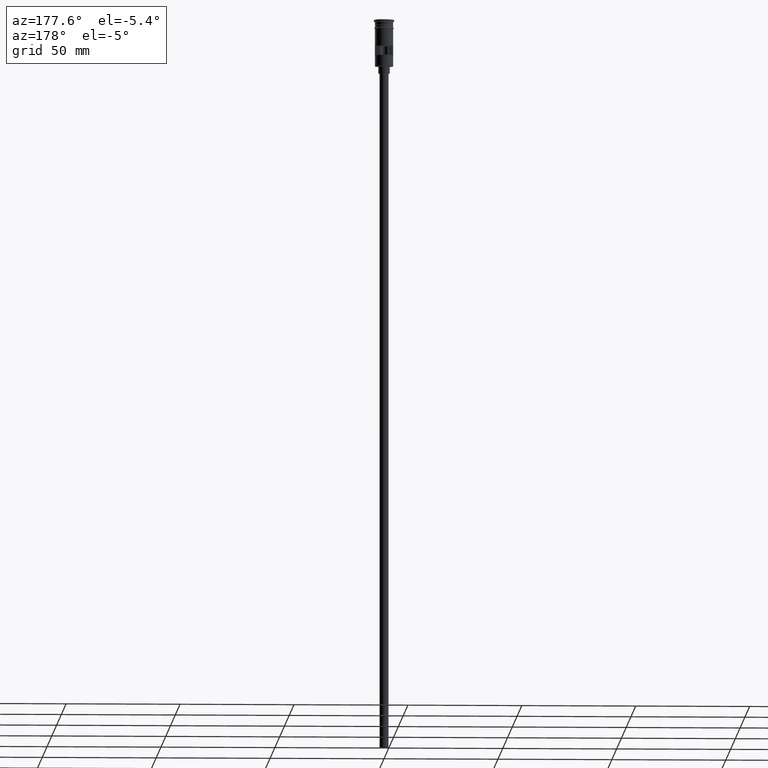
[diagram: clean part render]
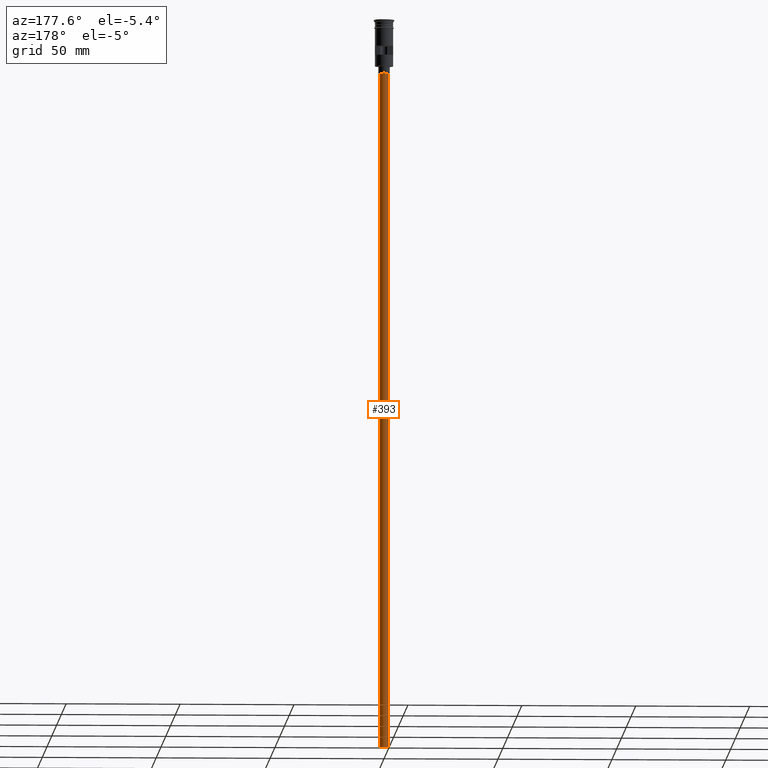
[diagram: same view with one face highlighted and labeled with its STEP entity id]
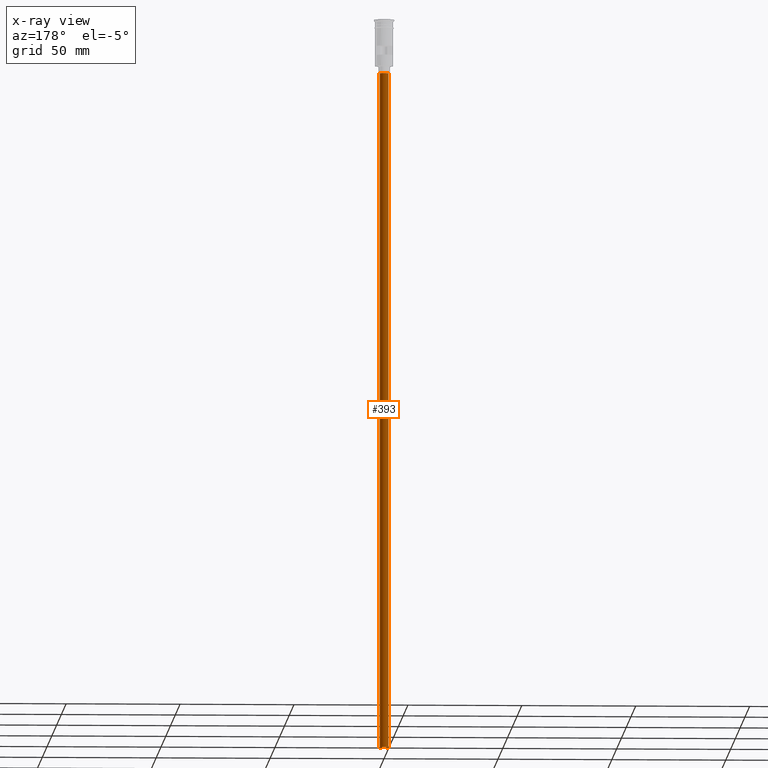
[diagram: x-ray of the same camera — body ghosted, the highlighted face saturated]
A machine part, auxiliary view. The second image highlights one B-rep face of the part: STEP entity #393.
The next image is the same camera in x-ray: the body ghosted, the highlighted face saturated — about 0% of this face is hidden behind the body in this view.
In plain terms, the highlighted cylindrical surface (edge-blend (fillet) strip) has radius 2 mm, axis along (-0, -0, 1).
Its self-contained STEP definition (entity closure, byte-faithful):
#22 = CARTESIAN_POINT ( 'NONE',  ( 0.000000000000000000, 0.000000000000000000, -320.5000000000000000 ) ) ;
#75 = LINE ( 'NONE', #433, #792 ) ;
#110 = CARTESIAN_POINT ( 'NONE',  ( 2.000000000000000000, 0.000000000000000000, -23.49999999999999645 ) ) ;
#118 = CIRCLE ( 'NONE', #729, 2.000000000000000000 ) ;
#145 = CYLINDRICAL_SURFACE ( 'NONE', #1175, 2.000000000000000000 ) ;
#276 = DIRECTION ( 'NONE',  ( -0.000000000000000000, -0.000000000000000000, 1.000000000000000000 ) ) ;
#333 = EDGE_CURVE ( 'NONE', #1108, #1413, #75, .T. ) ;
#374 = DIRECTION ( 'NONE',  ( 0.000000000000000000, 0.000000000000000000, -1.000000000000000000 ) ) ;
#379 = CARTESIAN_POINT ( 'NONE',  ( 0.000000000000000000, 0.000000000000000000, -23.49999999999999645 ) ) ;
#393 = ADVANCED_FACE ( 'NONE', ( #1373 ), #145, .T. ) ;
#424 = CIRCLE ( 'NONE', #751, 2.000000000000000000 ) ;
#433 = CARTESIAN_POINT ( 'NONE',  ( -2.000000000000000000, 2.449293598294706414E-16, -320.5000000000000000 ) ) ;
#542 = DIRECTION ( 'NONE',  ( -0.000000000000000000, -0.000000000000000000, 1.000000000000000000 ) ) ;
#558 = VERTEX_POINT ( 'NONE', #110 ) ;
#729 = AXIS2_PLACEMENT_3D ( 'NONE', #379, #374, #761 ) ;
#751 = AXIS2_PLACEMENT_3D ( 'NONE', #1515, #1265, #1526 ) ;
#761 = DIRECTION ( 'NONE',  ( -1.000000000000000000, 0.000000000000000000, 0.000000000000000000 ) ) ;
#792 = VECTOR ( 'NONE', #542, 1000.000000000000000 ) ;
#830 = EDGE_CURVE ( 'NONE', #1108, #1267, #424, .T. ) ;
#949 = ORIENTED_EDGE ( 'NONE', *, *, #830, .F. ) ;
#1027 = CARTESIAN_POINT ( 'NONE',  ( 2.000000000000000000, 0.000000000000000000, -320.5000000000000000 ) ) ;
#1106 = ORIENTED_EDGE ( 'NONE', *, *, #333, .T. ) ;
#1108 = VERTEX_POINT ( 'NONE', #1392 ) ;
#1111 = EDGE_CURVE ( 'NONE', #1413, #558, #118, .T. ) ;
#1142 = DIRECTION ( 'NONE',  ( 1.000000000000000000, 0.000000000000000000, 0.000000000000000000 ) ) ;
#1175 = AXIS2_PLACEMENT_3D ( 'NONE', #22, #276, #1142 ) ;
#1183 = DIRECTION ( 'NONE',  ( -0.000000000000000000, -0.000000000000000000, 1.000000000000000000 ) ) ;
#1193 = EDGE_LOOP ( 'NONE', ( #949, #1106, #1381, #1393 ) ) ;
#1217 = EDGE_CURVE ( 'NONE', #1267, #558, #1536, .T. ) ;
#1225 = VECTOR ( 'NONE', #1183, 1000.000000000000000 ) ;
#1265 = DIRECTION ( 'NONE',  ( 0.000000000000000000, 0.000000000000000000, -1.000000000000000000 ) ) ;
#1267 = VERTEX_POINT ( 'NONE', #1280 ) ;
#1280 = CARTESIAN_POINT ( 'NONE',  ( 2.000000000000000000, 0.000000000000000000, -320.5000000000000000 ) ) ;
#1335 = CARTESIAN_POINT ( 'NONE',  ( -2.000000000000000000, 2.449293598294706414E-16, -23.49999999999999645 ) ) ;
#1373 = FACE_OUTER_BOUND ( 'NONE', #1193, .T. ) ;
#1381 = ORIENTED_EDGE ( 'NONE', *, *, #1111, .T. ) ;
#1392 = CARTESIAN_POINT ( 'NONE',  ( -2.000000000000000000, 2.449293598294706414E-16, -320.5000000000000000 ) ) ;
#1393 = ORIENTED_EDGE ( 'NONE', *, *, #1217, .F. ) ;
#1413 = VERTEX_POINT ( 'NONE', #1335 ) ;
#1515 = CARTESIAN_POINT ( 'NONE',  ( 0.000000000000000000, 0.000000000000000000, -320.5000000000000000 ) ) ;
#1526 = DIRECTION ( 'NONE',  ( -1.000000000000000000, 0.000000000000000000, 0.000000000000000000 ) ) ;
#1536 = LINE ( 'NONE', #1027, #1225 ) ;